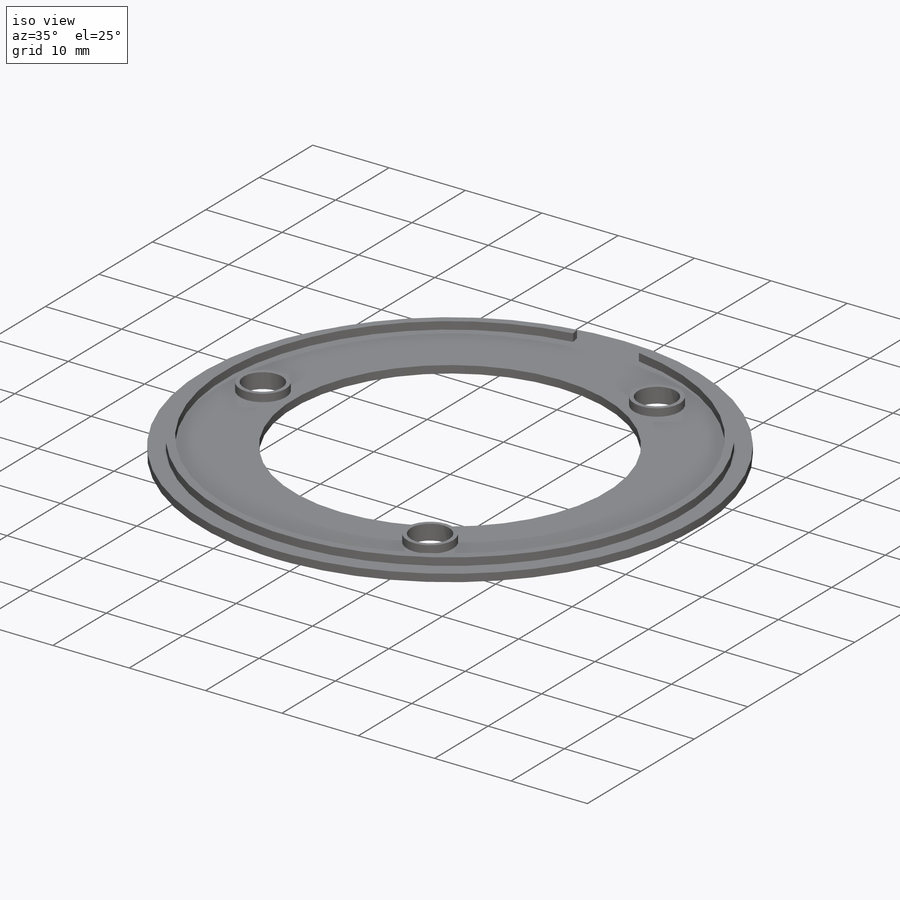
[diagram: iso view]
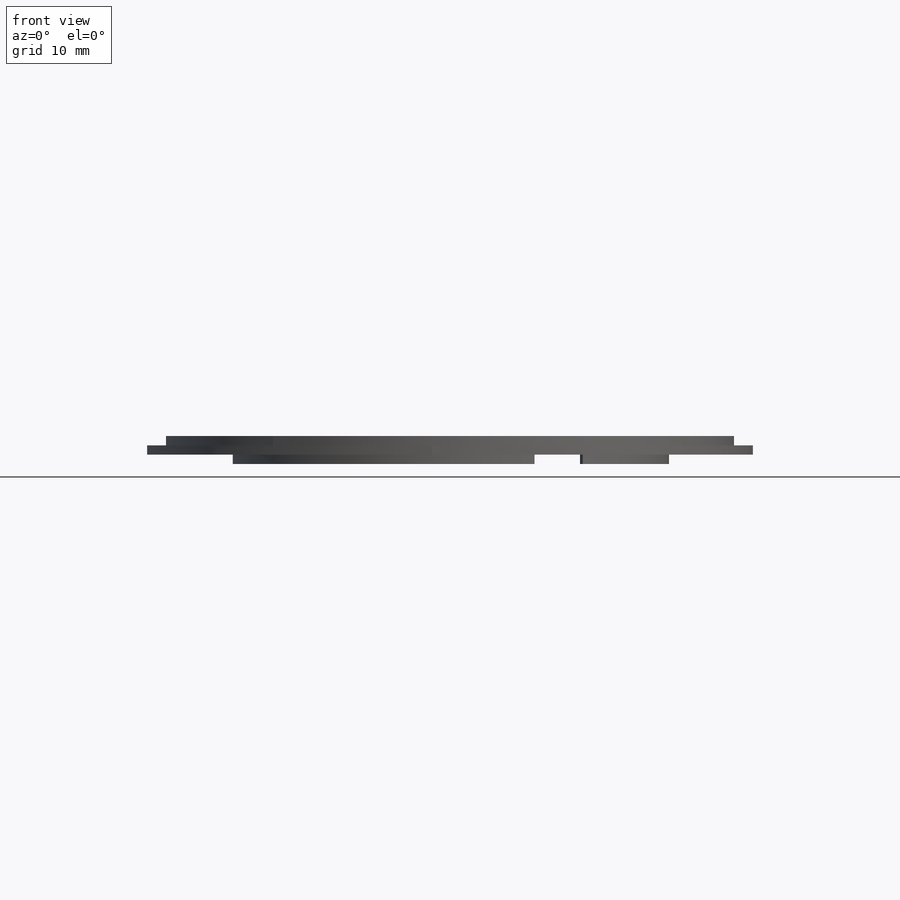
[diagram: front view]
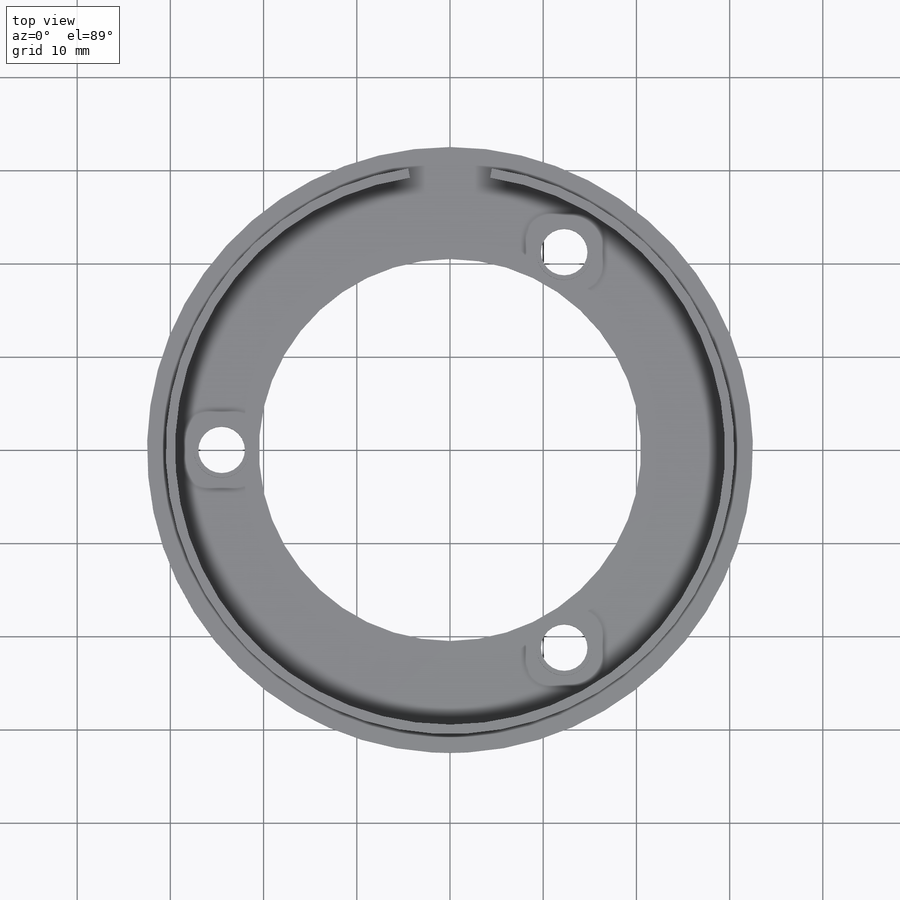
[diagram: top view]
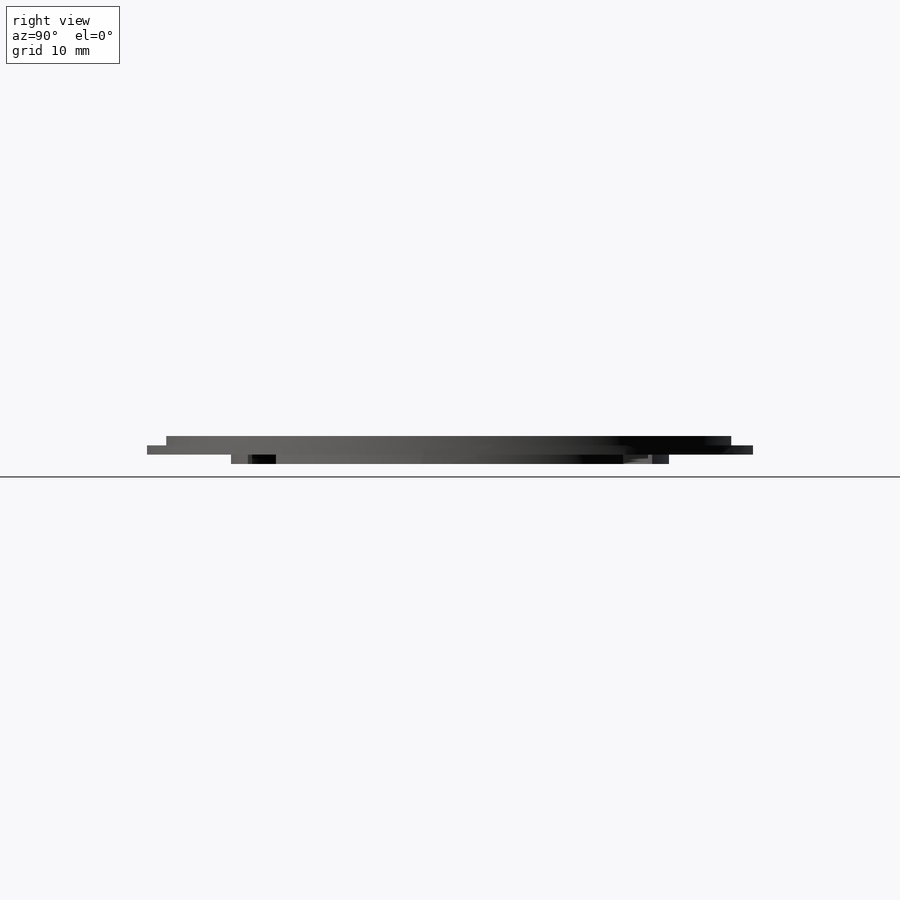
[diagram: right view]
SOLIDWORKS PART (.sldprt)
format: sldprt  version: not decoded by parser v0  size: 296,960 bytes
history: native  units: mm
features: sketch x6, plane x3, extrude x3, cut_extrude x2, material x1 (+9 scaffold rows collapsed)
feature tree (24):
  scaffold x9  (default folders/planes/origin — collapsed)
  material  "Material <sin especificar>"
  plane  "Alzado"
  plane  "Planta"
  plane  "Vista lateral"
  sketch  "Croquis1"  dims[D1=41.0mm D2=65.0mm]
  extrude  "Saliente-Extruir1"  Depth=2mm
  sketch  "Croquis2"  dims[D1=61.0mm D2=9.0mm D3=59.0mm]
  cut_extrude  "Cortar-Extruir1"  Depth=1mm
  sketch  "Croquis3"  dims[c1.D6=5.0mm c1.D8=6.0mm c1.D9=5.0mm c1.D11=6.0mm c1.D12=5.0mm c1.D13=8.0mm c1.D4=~3.415476mm c1.D1=32.5mm c2.D1=120.0deg c2.D2=32.5mm c3.D2=120.0deg c3.D3=15.25mm c4.D3=120.0deg c4.D4=1.0mm c4.D5=4.0mm c4.D7=5.0mm c4.D10=5.0mm c5.D4=24.5mm c5.D5=24.5mm c5.D7=24.5mm]
  extrude  "Saliente-Extruir2"  Depth=1mm
  sketch  "Croquis6"  dims[D1=~1.872944mm]
  cut_extrude  "Cortar-Extruir2"  Depth=25mm
  sketch  "Croquis7"  dims[c1.D1=47.0mm c1.D2=46.0mm c1.D6=52.0mm c1.D3=3.0mm c1.D4=3.0mm c1.D5=3.0mm c2.D6=3.0mm c2.D7=6.0mm]
  extrude  "Saliente-Extruir3"  Depth=1mm
  sketch  "Croquis8"  dims[D1=5.0mm]
decode coverage: 11 of 11 modeling features carry decoded parameters
note: ~ marks probable driven/reference dimensions
note: suppression state not decoded; provenance and decode notes live in map.json
